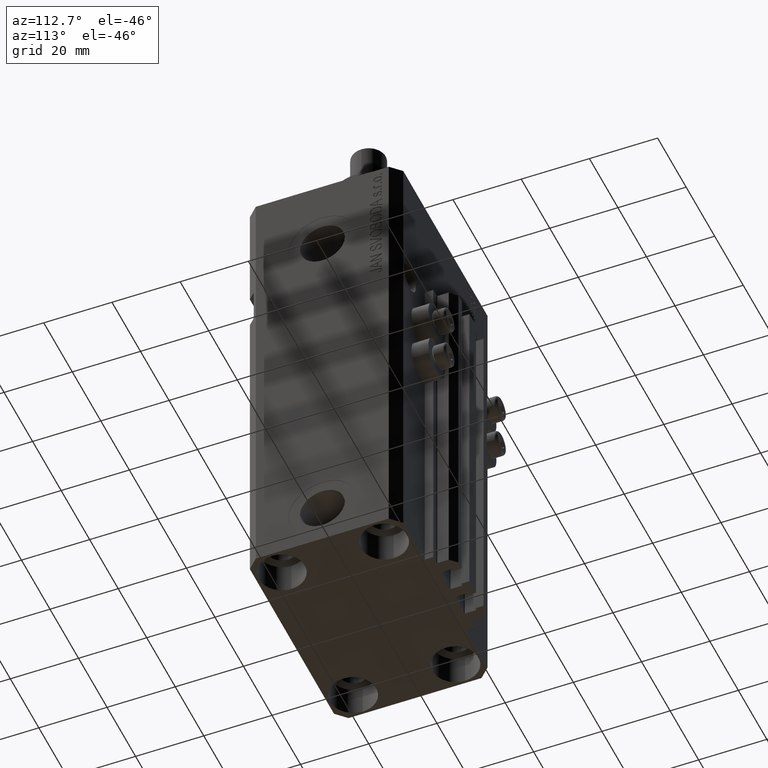
[diagram: clean part render]
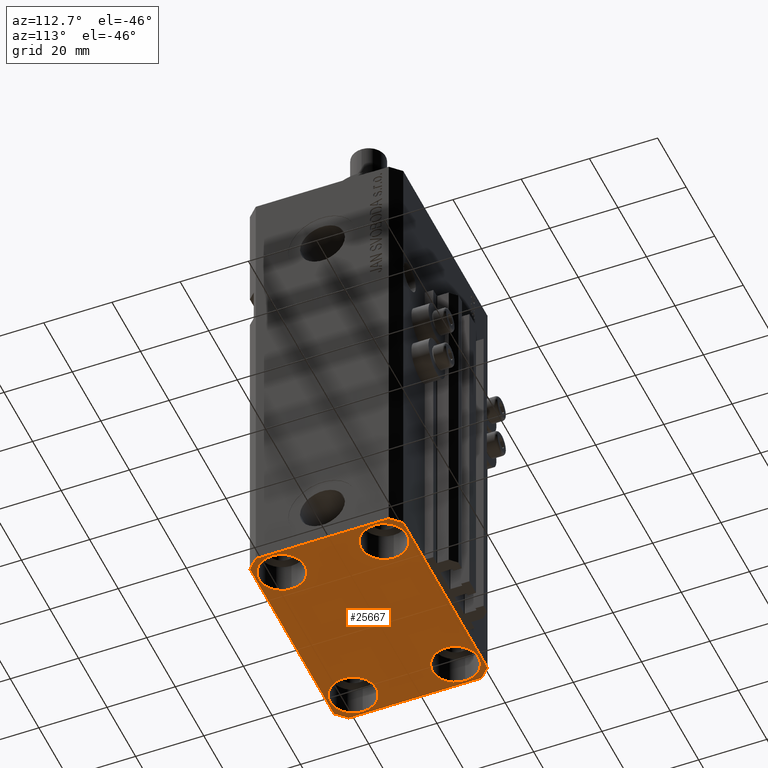
[diagram: same view with one face highlighted and labeled with its STEP entity id]
A machine part, auxiliary view. The second image highlights one B-rep face of the part: STEP entity #25667.
In plain terms, the highlighted planar face has unit normal (0, 0, 1).
Its self-contained STEP definition (entity closure, byte-faithful):
#887 = AXIS2_PLACEMENT_3D ( 'NONE', #48707, #40504, #7105 ) ;
#993 = CARTESIAN_POINT ( 'NONE',  ( 29.49999999999707967, 22.49999999999951328, -137.0000000000000000 ) ) ;
#1137 = EDGE_CURVE ( 'NONE', #24663, #18795, #33766, .T. ) ;
#1178 = ORIENTED_EDGE ( 'NONE', *, *, #18921, .F. ) ;
#1280 = LINE ( 'NONE', #38900, #48837 ) ;
#1705 = DIRECTION ( 'NONE',  ( 1.000000000000000000, 0.000000000000000000, 0.000000000000000000 ) ) ;
#1803 = CARTESIAN_POINT ( 'NONE',  ( 0.000000000000000000, 0.000000000000000000, -137.0000000000000000 ) ) ;
#1968 = DIRECTION ( 'NONE',  ( -0.000000000000000000, -0.000000000000000000, 1.000000000000000000 ) ) ;
#2044 = PLANE ( 'NONE',  #38200 ) ;
#2095 = LINE ( 'NONE', #47683, #29035 ) ;
#2208 = LINE ( 'NONE', #32117, #22648 ) ;
#2420 = EDGE_CURVE ( 'NONE', #18795, #24663, #46517, .T. ) ;
#2684 = LINE ( 'NONE', #35850, #9654 ) ;
#3011 = ORIENTED_EDGE ( 'NONE', *, *, #34626, .F. ) ;
#3820 = EDGE_CURVE ( 'NONE', #42631, #25817, #45004, .T. ) ;
#3944 = VERTEX_POINT ( 'NONE', #48545 ) ;
#4007 = VERTEX_POINT ( 'NONE', #30846 ) ;
#4201 = CARTESIAN_POINT ( 'NONE',  ( -25.00000000000000355, -15.00000000000000000, -137.0000000000000000 ) ) ;
#4403 = CARTESIAN_POINT ( 'NONE',  ( 32.49999999999702993, 19.49999999999945999, -137.0000000000000000 ) ) ;
#5408 = EDGE_CURVE ( 'NONE', #48432, #3944, #49027, .T. ) ;
#5535 = DIRECTION ( 'NONE',  ( 1.334402673828349134E-14, 1.000000000000000000, 0.000000000000000000 ) ) ;
#5714 = DIRECTION ( 'NONE',  ( 0.7071067811865474617, -0.7071067811865474617, 0.000000000000000000 ) ) ;
#5899 = VERTEX_POINT ( 'NONE', #23939 ) ;
#6023 = LINE ( 'NONE', #6264, #24652 ) ;
#6264 = CARTESIAN_POINT ( 'NONE',  ( 32.49999999999651124, -19.49999999999949196, -137.0000000000000000 ) ) ;
#7105 = DIRECTION ( 'NONE',  ( 1.000000000000000000, 0.000000000000000000, 0.000000000000000000 ) ) ;
#7530 = AXIS2_PLACEMENT_3D ( 'NONE', #29246, #10051, #9576 ) ;
#7577 = VERTEX_POINT ( 'NONE', #24556 ) ;
#7701 = DIRECTION ( 'NONE',  ( 1.000000000000000000, 0.000000000000000000, 0.000000000000000000 ) ) ;
#7742 = ORIENTED_EDGE ( 'NONE', *, *, #38528, .F. ) ;
#8142 = CARTESIAN_POINT ( 'NONE',  ( 18.25000000004154543, 15.00000000000000888, -137.0000000000000000 ) ) ;
#8188 = AXIS2_PLACEMENT_3D ( 'NONE', #4201, #34852, #7701 ) ;
#8846 = EDGE_LOOP ( 'NONE', ( #22072, #36409 ) ) ;
#9181 = DIRECTION ( 'NONE',  ( 1.000000000000000000, 1.176083712526788232E-16, 0.000000000000000000 ) ) ;
#9278 = FACE_BOUND ( 'NONE', #11836, .T. ) ;
#9576 = DIRECTION ( 'NONE',  ( 1.000000000000000000, 0.000000000000000000, 0.000000000000000000 ) ) ;
#9654 = VECTOR ( 'NONE', #48029, 1000.000000000000114 ) ;
#10051 = DIRECTION ( 'NONE',  ( -0.000000000000000000, -0.000000000000000000, 1.000000000000000000 ) ) ;
#10908 = DIRECTION ( 'NONE',  ( 1.000000000000000000, 0.000000000000000000, 0.000000000000000000 ) ) ;
#10915 = ORIENTED_EDGE ( 'NONE', *, *, #25648, .F. ) ;
#11836 = EDGE_LOOP ( 'NONE', ( #22389, #44295 ) ) ;
#11954 = CARTESIAN_POINT ( 'NONE',  ( 18.25000000002253842, -15.00000000000000000, -137.0000000000000000 ) ) ;
#12275 = AXIS2_PLACEMENT_3D ( 'NONE', #20888, #1968, #46825 ) ;
#13303 = DIRECTION ( 'NONE',  ( 1.000000000000000000, 0.000000000000000000, 0.000000000000000000 ) ) ;
#13426 = CARTESIAN_POINT ( 'NONE',  ( 25.00000000000000355, -15.00000000000000000, -137.0000000000000000 ) ) ;
#13534 = DIRECTION ( 'NONE',  ( 0.7071067811865483499, 0.7071067811865466846, 0.000000000000000000 ) ) ;
#15372 = LINE ( 'NONE', #18176, #15943 ) ;
#15943 = VECTOR ( 'NONE', #21916, 1000.000000000000000 ) ;
#16395 = DIRECTION ( 'NONE',  ( -0.000000000000000000, -0.000000000000000000, 1.000000000000000000 ) ) ;
#16456 = DIRECTION ( 'NONE',  ( -1.000000000000000000, -2.352167425053553784E-16, 0.000000000000000000 ) ) ;
#16579 = EDGE_CURVE ( 'NONE', #4007, #7577, #28113, .T. ) ;
#16674 = LINE ( 'NONE', #47326, #18450 ) ;
#16827 = VERTEX_POINT ( 'NONE', #46502 ) ;
#17196 = CARTESIAN_POINT ( 'NONE',  ( 32.49999999999651124, -19.49999999999949196, -137.0000000000000000 ) ) ;
#17219 = DIRECTION ( 'NONE',  ( 1.000000000000000000, 0.000000000000000000, -0.000000000000000000 ) ) ;
#17672 = VERTEX_POINT ( 'NONE', #17196 ) ;
#18176 = CARTESIAN_POINT ( 'NONE',  ( 32.49999999999702993, 19.49999999999945999, -137.0000000000000000 ) ) ;
#18450 = VECTOR ( 'NONE', #5714, 1000.000000000000114 ) ;
#18550 = ORIENTED_EDGE ( 'NONE', *, *, #3820, .T. ) ;
#18619 = VERTEX_POINT ( 'NONE', #993 ) ;
#18795 = VERTEX_POINT ( 'NONE', #40387 ) ;
#18921 = EDGE_CURVE ( 'NONE', #36008, #18619, #15372, .T. ) ;
#20195 = ORIENTED_EDGE ( 'NONE', *, *, #44632, .F. ) ;
#20888 = CARTESIAN_POINT ( 'NONE',  ( 25.00000000000000355, -15.00000000000000000, -137.0000000000000000 ) ) ;
#21916 = DIRECTION ( 'NONE',  ( -0.7071067811865352493, 0.7071067811865597852, 0.000000000000000000 ) ) ;
#22072 = ORIENTED_EDGE ( 'NONE', *, *, #32815, .T. ) ;
#22389 = ORIENTED_EDGE ( 'NONE', *, *, #2420, .T. ) ;
#22470 = CIRCLE ( 'NONE', #8188, 6.750000000041541881 ) ;
#22648 = VECTOR ( 'NONE', #35858, 1000.000000000000000 ) ;
#23157 = CIRCLE ( 'NONE', #887, 6.750000000041541881 ) ;
#23842 = EDGE_CURVE ( 'NONE', #25540, #16827, #22470, .T. ) ;
#23877 = CARTESIAN_POINT ( 'NONE',  ( -29.49999999999650413, 22.49999999999949907, -137.0000000000000000 ) ) ;
#23939 = CARTESIAN_POINT ( 'NONE',  ( -32.49999999999650413, -19.49999999999949907, -137.0000000000000000 ) ) ;
#23947 = ORIENTED_EDGE ( 'NONE', *, *, #25354, .T. ) ;
#23975 = VERTEX_POINT ( 'NONE', #23877 ) ;
#24309 = AXIS2_PLACEMENT_3D ( 'NONE', #13426, #28646, #10908 ) ;
#24556 = CARTESIAN_POINT ( 'NONE',  ( 29.49999999999650413, -22.49999999999949196, -137.0000000000000000 ) ) ;
#24652 = VECTOR ( 'NONE', #5535, 1000.000000000000000 ) ;
#24663 = VERTEX_POINT ( 'NONE', #41186 ) ;
#25354 = EDGE_CURVE ( 'NONE', #3944, #48432, #33410, .T. ) ;
#25540 = VERTEX_POINT ( 'NONE', #38936 ) ;
#25648 = EDGE_CURVE ( 'NONE', #17672, #36008, #6023, .T. ) ;
#25667 = ADVANCED_FACE ( 'NONE', ( #28946, #40402, #36659, #9278, #35933 ), #2044, .F. ) ;
#25817 = VERTEX_POINT ( 'NONE', #11954 ) ;
#25894 = CARTESIAN_POINT ( 'NONE',  ( -25.00000000000000355, 15.00000000000000000, -137.0000000000000000 ) ) ;
#27283 = EDGE_LOOP ( 'NONE', ( #7742, #1178, #10915, #20195, #30432, #3011, #47100, #43448 ) ) ;
#27553 = AXIS2_PLACEMENT_3D ( 'NONE', #35342, #16395, #1705 ) ;
#28113 = LINE ( 'NONE', #43319, #41340 ) ;
#28646 = DIRECTION ( 'NONE',  ( -0.000000000000000000, -0.000000000000000000, 1.000000000000000000 ) ) ;
#28946 = FACE_BOUND ( 'NONE', #8846, .T. ) ;
#29035 = VECTOR ( 'NONE', #13534, 1000.000000000000000 ) ;
#29246 = CARTESIAN_POINT ( 'NONE',  ( -25.00000000000000355, 15.00000000000000000, -137.0000000000000000 ) ) ;
#29904 = CARTESIAN_POINT ( 'NONE',  ( 31.74999999997746869, -15.00000000000000000, -137.0000000000000000 ) ) ;
#30432 = ORIENTED_EDGE ( 'NONE', *, *, #16579, .F. ) ;
#30846 = CARTESIAN_POINT ( 'NONE',  ( -29.49999999999650413, -22.49999999999949907, -137.0000000000000000 ) ) ;
#31275 = CARTESIAN_POINT ( 'NONE',  ( 24.99999999999999645, 15.00000000000000888, -137.0000000000000000 ) ) ;
#31747 = ORIENTED_EDGE ( 'NONE', *, *, #42796, .T. ) ;
#32117 = CARTESIAN_POINT ( 'NONE',  ( -32.49999999999650413, 19.49999999999949907, -137.0000000000000000 ) ) ;
#32435 = EDGE_CURVE ( 'NONE', #23975, #47400, #2684, .T. ) ;
#32815 = EDGE_CURVE ( 'NONE', #16827, #25540, #23157, .T. ) ;
#32931 = CIRCLE ( 'NONE', #12275, 6.749999999977465137 ) ;
#33410 = CIRCLE ( 'NONE', #34200, 6.749999999958452790 ) ;
#33766 = CIRCLE ( 'NONE', #43320, 6.750000000022533087 ) ;
#34200 = AXIS2_PLACEMENT_3D ( 'NONE', #31275, #46470, #13303 ) ;
#34626 = EDGE_CURVE ( 'NONE', #5899, #4007, #16674, .T. ) ;
#34852 = DIRECTION ( 'NONE',  ( -0.000000000000000000, -0.000000000000000000, 1.000000000000000000 ) ) ;
#35094 = CARTESIAN_POINT ( 'NONE',  ( -32.49999999999650413, 19.49999999999949907, -137.0000000000000000 ) ) ;
#35342 = CARTESIAN_POINT ( 'NONE',  ( 24.99999999999999645, 15.00000000000000888, -137.0000000000000000 ) ) ;
#35850 = CARTESIAN_POINT ( 'NONE',  ( -29.49999999999650413, 22.49999999999949907, -137.0000000000000000 ) ) ;
#35858 = DIRECTION ( 'NONE',  ( 0.000000000000000000, -1.000000000000000000, 0.000000000000000000 ) ) ;
#35933 = FACE_OUTER_BOUND ( 'NONE', #27283, .T. ) ;
#36008 = VERTEX_POINT ( 'NONE', #4403 ) ;
#36409 = ORIENTED_EDGE ( 'NONE', *, *, #23842, .T. ) ;
#36659 = FACE_BOUND ( 'NONE', #41537, .T. ) ;
#38200 = AXIS2_PLACEMENT_3D ( 'NONE', #1803, #43657, #17219 ) ;
#38528 = EDGE_CURVE ( 'NONE', #18619, #23975, #1280, .T. ) ;
#38900 = CARTESIAN_POINT ( 'NONE',  ( 29.49999999999707967, 22.49999999999951328, -137.0000000000000000 ) ) ;
#38936 = CARTESIAN_POINT ( 'NONE',  ( -18.24999999995845812, -15.00000000000000000, -137.0000000000000000 ) ) ;
#40387 = CARTESIAN_POINT ( 'NONE',  ( -31.75000000002253842, 15.00000000000000000, -137.0000000000000000 ) ) ;
#40402 = FACE_BOUND ( 'NONE', #45764, .T. ) ;
#40504 = DIRECTION ( 'NONE',  ( -0.000000000000000000, -0.000000000000000000, 1.000000000000000000 ) ) ;
#41186 = CARTESIAN_POINT ( 'NONE',  ( -18.24999999997747224, 15.00000000000000000, -137.0000000000000000 ) ) ;
#41340 = VECTOR ( 'NONE', #9181, 1000.000000000000000 ) ;
#41537 = EDGE_LOOP ( 'NONE', ( #46439, #23947 ) ) ;
#42631 = VERTEX_POINT ( 'NONE', #29904 ) ;
#42796 = EDGE_CURVE ( 'NONE', #25817, #42631, #32931, .T. ) ;
#43319 = CARTESIAN_POINT ( 'NONE',  ( -29.49999999999650413, -22.49999999999949907, -137.0000000000000000 ) ) ;
#43320 = AXIS2_PLACEMENT_3D ( 'NONE', #25894, #45343, #44842 ) ;
#43448 = ORIENTED_EDGE ( 'NONE', *, *, #32435, .F. ) ;
#43657 = DIRECTION ( 'NONE',  ( 0.000000000000000000, 0.000000000000000000, 1.000000000000000000 ) ) ;
#44295 = ORIENTED_EDGE ( 'NONE', *, *, #1137, .T. ) ;
#44297 = EDGE_CURVE ( 'NONE', #47400, #5899, #2208, .T. ) ;
#44632 = EDGE_CURVE ( 'NONE', #7577, #17672, #2095, .T. ) ;
#44842 = DIRECTION ( 'NONE',  ( 1.000000000000000000, 0.000000000000000000, 0.000000000000000000 ) ) ;
#45004 = CIRCLE ( 'NONE', #24309, 6.749999999977465137 ) ;
#45343 = DIRECTION ( 'NONE',  ( -0.000000000000000000, -0.000000000000000000, 1.000000000000000000 ) ) ;
#45764 = EDGE_LOOP ( 'NONE', ( #31747, #18550 ) ) ;
#46439 = ORIENTED_EDGE ( 'NONE', *, *, #5408, .T. ) ;
#46470 = DIRECTION ( 'NONE',  ( -0.000000000000000000, -0.000000000000000000, 1.000000000000000000 ) ) ;
#46502 = CARTESIAN_POINT ( 'NONE',  ( -31.75000000004154899, -15.00000000000000000, -137.0000000000000000 ) ) ;
#46517 = CIRCLE ( 'NONE', #7530, 6.750000000022533087 ) ;
#46825 = DIRECTION ( 'NONE',  ( 1.000000000000000000, 0.000000000000000000, 0.000000000000000000 ) ) ;
#47100 = ORIENTED_EDGE ( 'NONE', *, *, #44297, .F. ) ;
#47326 = CARTESIAN_POINT ( 'NONE',  ( -32.49999999999650413, -19.49999999999949907, -137.0000000000000000 ) ) ;
#47400 = VERTEX_POINT ( 'NONE', #35094 ) ;
#47683 = CARTESIAN_POINT ( 'NONE',  ( 29.49999999999650413, -22.49999999999949196, -137.0000000000000000 ) ) ;
#48029 = DIRECTION ( 'NONE',  ( -0.7071067811865474617, -0.7071067811865474617, 0.000000000000000000 ) ) ;
#48432 = VERTEX_POINT ( 'NONE', #8142 ) ;
#48545 = CARTESIAN_POINT ( 'NONE',  ( 31.74999999995845101, 15.00000000000000888, -137.0000000000000000 ) ) ;
#48707 = CARTESIAN_POINT ( 'NONE',  ( -25.00000000000000355, -15.00000000000000000, -137.0000000000000000 ) ) ;
#48837 = VECTOR ( 'NONE', #16456, 1000.000000000000000 ) ;
#49027 = CIRCLE ( 'NONE', #27553, 6.749999999958452790 ) ;